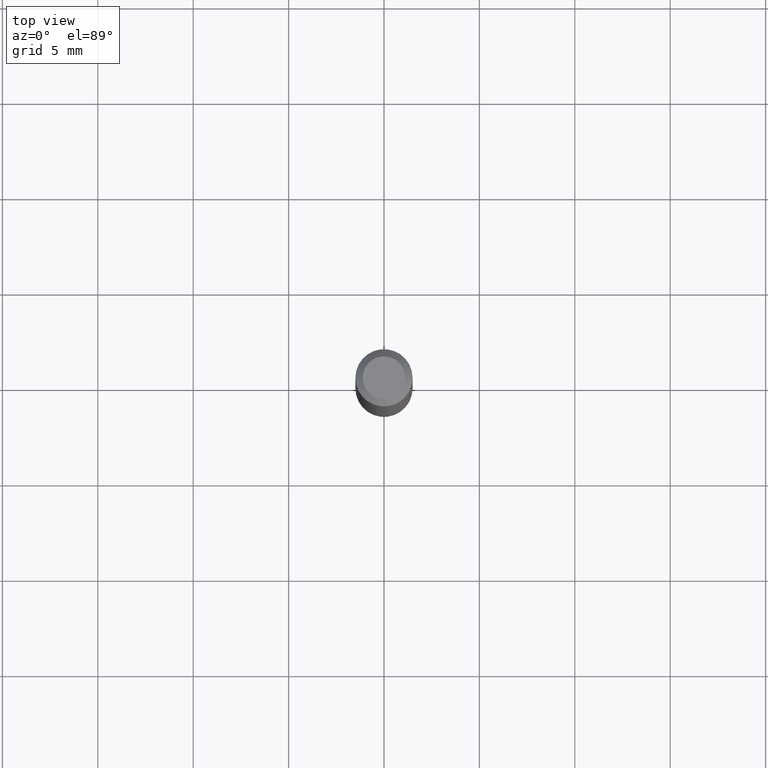
[diagram: clean part render]
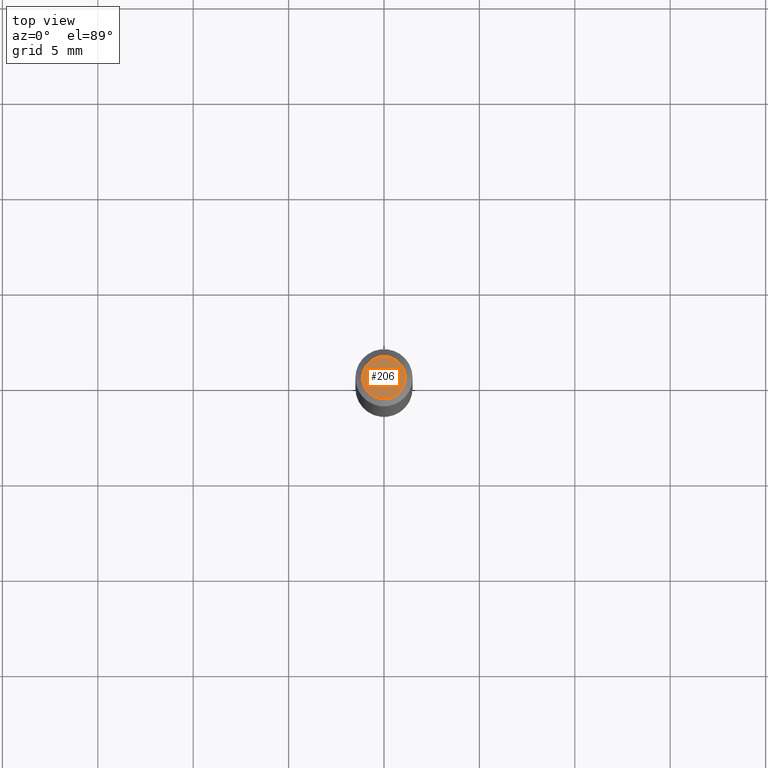
[diagram: same view with one face highlighted and labeled with its STEP entity id]
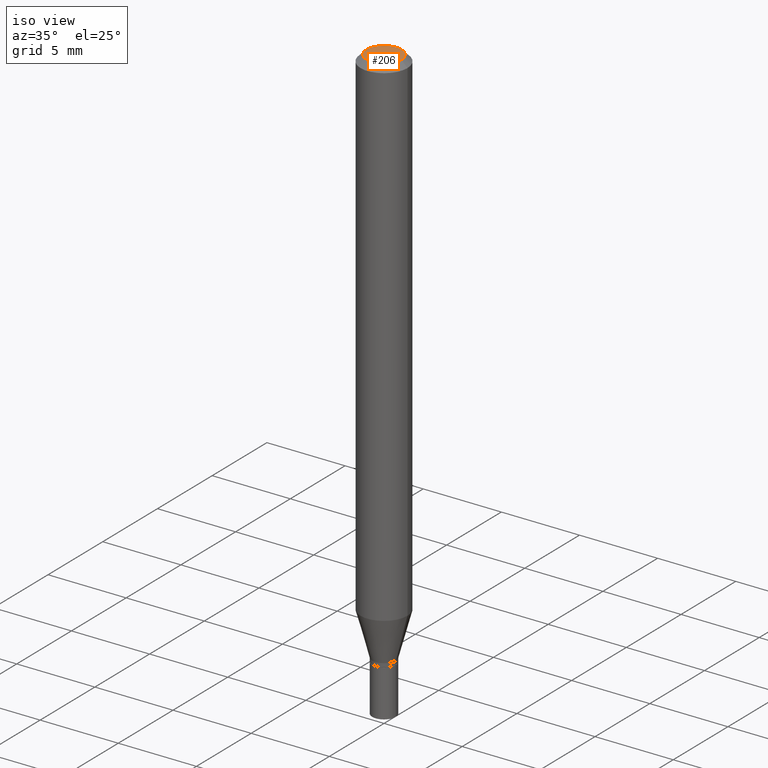
[diagram: same view with one face highlighted and labeled with its STEP entity id]
A machine part, top view. The second image highlights one B-rep face of the part: STEP entity #206.
A second angle (iso view) of the same face is appended — the face is thin or edge-on in the first view.
In plain terms, the highlighted planar face has unit normal (0, -0, -1).
Its self-contained STEP definition (entity closure, byte-faithful):
#44 = DIRECTION ( 'NONE',  ( -2.445468806185136597E-29, 3.491481338843145583E-15, 1.000000000000000000 ) ) ;
#69 = EDGE_CURVE ( 'NONE', #137, #278, #99, .T. ) ;
#74 = CARTESIAN_POINT ( 'NONE',  ( 3.075995059520799729E-16, 0.04404999999999999888, 2.287766971589501637E-17 ) ) ;
#99 = CIRCLE ( 'NONE', #147, 0.04404999999999999888 ) ;
#109 = CARTESIAN_POINT ( 'NONE',  ( -0.04404999999999999888, 3.337856159934041534E-16, 3.533548453838689148E-16 ) ) ;
#119 = CARTESIAN_POINT ( 'NONE',  ( 0.04404999999999999888, -3.798447818264455642E-16, 3.533548453838735986E-16 ) ) ;
#137 = VERTEX_POINT ( 'NONE', #109 ) ;
#147 = AXIS2_PLACEMENT_3D ( 'NONE', #258, #225, #186 ) ;
#186 = DIRECTION ( 'NONE',  ( 1.000000000000000000, -6.982962677686265922E-15, 4.819687581474398999E-29 ) ) ;
#206 = ADVANCED_FACE ( 'NONE', ( #368 ), #447, .F. ) ;
#225 = DIRECTION ( 'NONE',  ( -2.445468806185136597E-29, 3.491481338843145583E-15, 1.000000000000000000 ) ) ;
#233 = EDGE_LOOP ( 'NONE', ( #356, #282 ) ) ;
#242 = EDGE_CURVE ( 'NONE', #278, #137, #466, .T. ) ;
#258 = CARTESIAN_POINT ( 'NONE',  ( -8.641182519006289553E-45, 1.233731848647591164E-30, 3.533548453838711334E-16 ) ) ;
#278 = VERTEX_POINT ( 'NONE', #119 ) ;
#282 = ORIENTED_EDGE ( 'NONE', *, *, #242, .T. ) ;
#283 = AXIS2_PLACEMENT_3D ( 'NONE', #74, #341, #404 ) ;
#291 = CARTESIAN_POINT ( 'NONE',  ( -8.641182519006289553E-45, 1.233731848647591164E-30, 3.533548453838711334E-16 ) ) ;
#332 = DIRECTION ( 'NONE',  ( 1.000000000000000000, -6.982962677686265922E-15, 4.819687581474398999E-29 ) ) ;
#341 = DIRECTION ( 'NONE',  ( 2.438088387897960049E-29, -3.491481338843145188E-15, -1.000000000000000000 ) ) ;
#356 = ORIENTED_EDGE ( 'NONE', *, *, #69, .T. ) ;
#368 = FACE_OUTER_BOUND ( 'NONE', #233, .T. ) ;
#404 = DIRECTION ( 'NONE',  ( -1.000000000000000000, 6.982962677686265922E-15, -4.876176775795935793E-29 ) ) ;
#437 = AXIS2_PLACEMENT_3D ( 'NONE', #291, #44, #332 ) ;
#447 = PLANE ( 'NONE',  #283 ) ;
#466 = CIRCLE ( 'NONE', #437, 0.04404999999999999888 ) ;